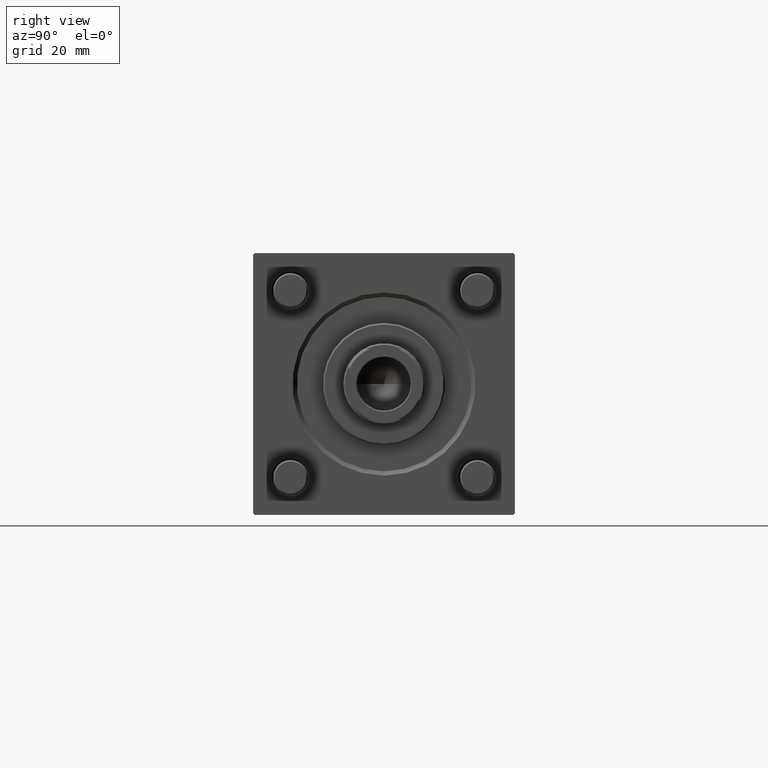
[diagram: clean part render]
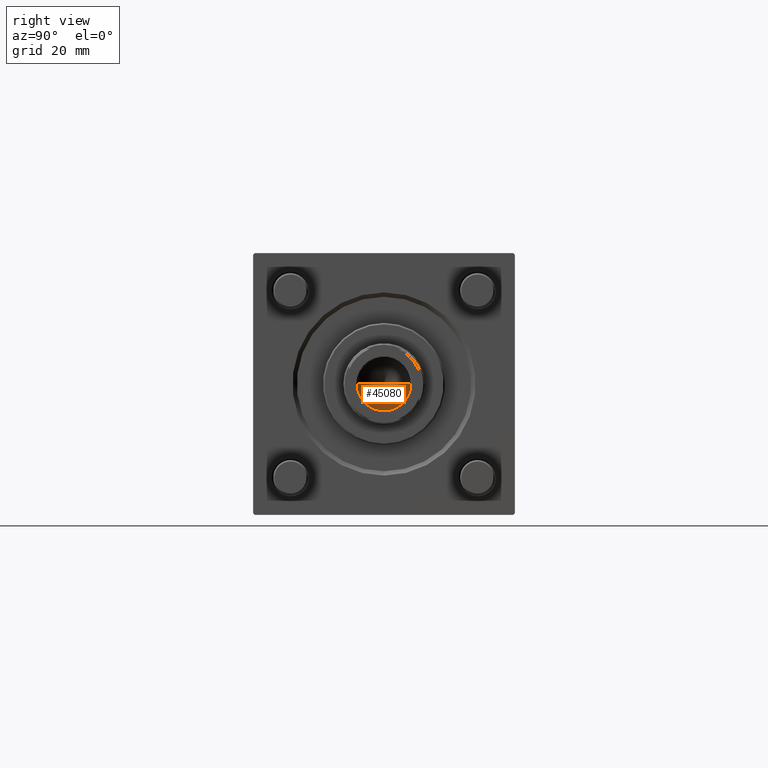
[diagram: same view with one face highlighted and labeled with its STEP entity id]
A machine part, right view. The second image highlights one B-rep face of the part: STEP entity #45080.
In plain terms, the highlighted conical surface has half-angle 59 deg.
Its self-contained STEP definition (entity closure, byte-faithful):
#335 = CARTESIAN_POINT ( 'NONE',  ( -9.769621978240258809E-15, 0.000000000000000000, 109.4420392739950501 ) ) ;
#4245 = VERTEX_POINT ( 'NONE', #335 ) ;
#8094 = AXIS2_PLACEMENT_3D ( 'NONE', #18528, #53226, #13952 ) ;
#11660 = DIRECTION ( 'NONE',  ( -0.8571673007021117785, 1.049727191138617956E-16, 0.5150380749100550437 ) ) ;
#11824 = ORIENTED_EDGE ( 'NONE', *, *, #20855, .T. ) ;
#13952 = DIRECTION ( 'NONE',  ( 1.000000000000000000, 0.000000000000000000, 0.000000000000000000 ) ) ;
#14248 = CARTESIAN_POINT ( 'NONE',  ( 9.249999999999992895, 0.000000000000000000, 114.9999999999999858 ) ) ;
#14870 = VERTEX_POINT ( 'NONE', #41220 ) ;
#17810 = DIRECTION ( 'NONE',  ( -0.000000000000000000, -0.000000000000000000, 1.000000000000000000 ) ) ;
#18528 = CARTESIAN_POINT ( 'NONE',  ( 0.000000000000000000, 0.000000000000000000, 114.9999999999999858 ) ) ;
#18734 = ORIENTED_EDGE ( 'NONE', *, *, #26754, .F. ) ;
#20855 = EDGE_CURVE ( 'NONE', #39447, #14870, #26437, .T. ) ;
#20946 = DIRECTION ( 'NONE',  ( 0.8571673007021117785, 0.000000000000000000, 0.5150380749100550437 ) ) ;
#25348 = ORIENTED_EDGE ( 'NONE', *, *, #45418, .T. ) ;
#26437 = CIRCLE ( 'NONE', #8094, 9.249999999999992895 ) ;
#26754 = EDGE_CURVE ( 'NONE', #4245, #14870, #38874, .T. ) ;
#27888 = CONICAL_SURFACE ( 'NONE', #52601, 9.249999999999992895, 1.029744258676653423 ) ;
#31582 = FACE_OUTER_BOUND ( 'NONE', #52614, .T. ) ;
#33093 = VECTOR ( 'NONE', #11660, 1000.000000000000000 ) ;
#38314 = CARTESIAN_POINT ( 'NONE',  ( -9.249999999999992895, 1.132798289211300712E-15, 114.9999999999999858 ) ) ;
#38874 = LINE ( 'NONE', #38314, #33093 ) ;
#39447 = VERTEX_POINT ( 'NONE', #14248 ) ;
#41220 = CARTESIAN_POINT ( 'NONE',  ( -9.249999999999992895, 1.132798289211300712E-15, 114.9999999999999858 ) ) ;
#42442 = CARTESIAN_POINT ( 'NONE',  ( 9.249999999999992895, 0.000000000000000000, 114.9999999999999858 ) ) ;
#42539 = VECTOR ( 'NONE', #20946, 1000.000000000000000 ) ;
#45080 = ADVANCED_FACE ( 'NONE', ( #31582 ), #27888, .F. ) ;
#45418 = EDGE_CURVE ( 'NONE', #4245, #39447, #46458, .T. ) ;
#46458 = LINE ( 'NONE', #42442, #42539 ) ;
#52601 = AXIS2_PLACEMENT_3D ( 'NONE', #56551, #17810, #53381 ) ;
#52614 = EDGE_LOOP ( 'NONE', ( #18734, #25348, #11824 ) ) ;
#53226 = DIRECTION ( 'NONE',  ( -0.000000000000000000, -0.000000000000000000, 1.000000000000000000 ) ) ;
#53381 = DIRECTION ( 'NONE',  ( 1.000000000000000000, 0.000000000000000000, 0.000000000000000000 ) ) ;
#56551 = CARTESIAN_POINT ( 'NONE',  ( 0.000000000000000000, 0.000000000000000000, 114.9999999999999858 ) ) ;